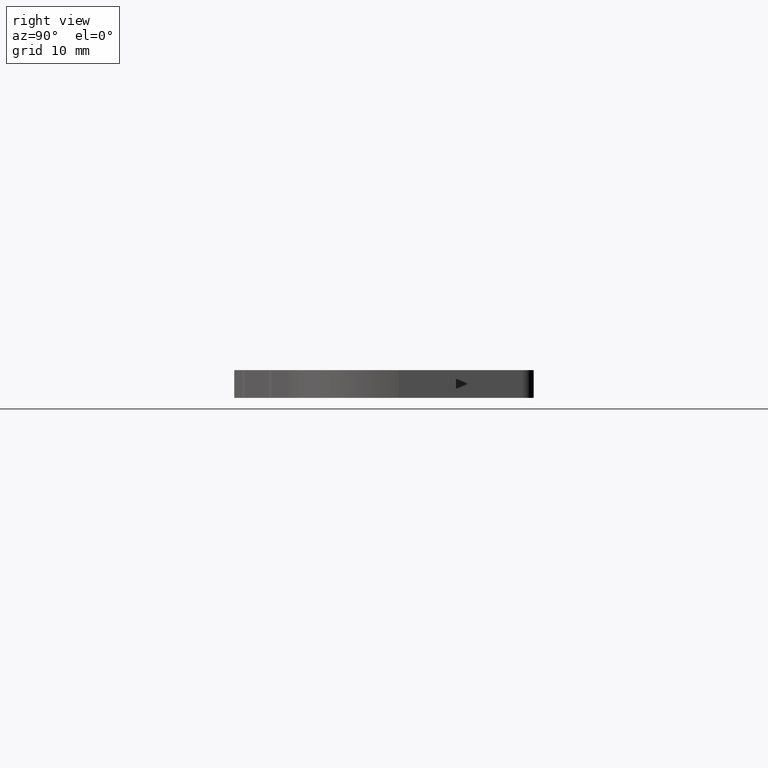
[diagram: clean part render]
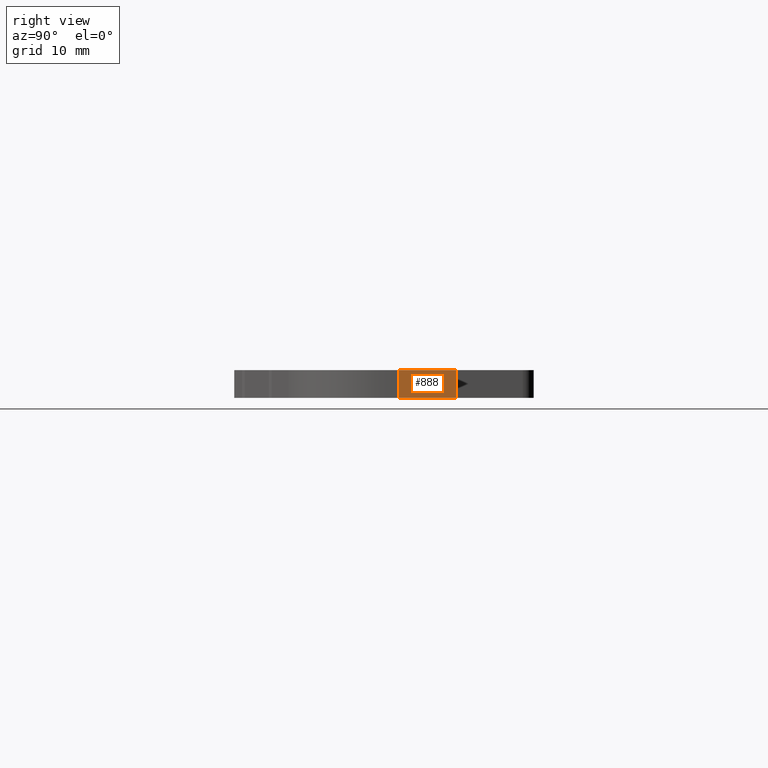
[diagram: same view with one face highlighted and labeled with its STEP entity id]
A machine part, right view. The second image highlights one B-rep face of the part: STEP entity #888.
In plain terms, the highlighted planar face has unit normal (1, 0, 0).
Its self-contained STEP definition (entity closure, byte-faithful):
#830=CARTESIAN_POINT('',(50.000017703124271,4.865224704818502,-2.500000000000000));
#831=VERTEX_POINT('',#830);
#839=CARTESIAN_POINT('',(50.000017703124271,4.865224704818502,0.0));
#840=VERTEX_POINT('',#839);
#841=CARTESIAN_POINT('',(50.000017703124271,4.865224704818502,-2.500000000000000));
#842=DIRECTION('',(0.0,0.0,1.0));
#843=VECTOR('',#842,2.500000000000000);
#844=LINE('',#841,#843);
#845=EDGE_CURVE('',#831,#840,#844,.T.);
#858=CARTESIAN_POINT('',(50.000017703124271,4.865224704818502,-2.500000000000000));
#859=DIRECTION('',(1.0,0.0,0.0));
#860=DIRECTION('',(0.0,1.0,0.0));
#861=AXIS2_PLACEMENT_3D('',#858,#859,#860);
#862=PLANE('',#861);
#863=CARTESIAN_POINT('',(50.000017703124271,9.999975307860666,-2.500000000000000));
#864=VERTEX_POINT('',#863);
#865=CARTESIAN_POINT('',(50.000017703124271,4.865224704818502,-2.500000000000000));
#866=DIRECTION('',(0.0,1.0,0.0));
#867=VECTOR('',#866,5.134750603042164);
#868=LINE('',#865,#867);
#869=EDGE_CURVE('',#831,#864,#868,.T.);
#870=ORIENTED_EDGE('',*,*,#869,.T.);
#871=CARTESIAN_POINT('',(50.000017703124271,9.999975307860666,0.0));
#872=VERTEX_POINT('',#871);
#873=CARTESIAN_POINT('',(50.000017703124271,9.999975307860666,-2.500000000000000));
#874=DIRECTION('',(0.0,0.0,1.0));
#875=VECTOR('',#874,2.500000000000000);
#876=LINE('',#873,#875);
#877=EDGE_CURVE('',#864,#872,#876,.T.);
#878=ORIENTED_EDGE('',*,*,#877,.T.);
#879=CARTESIAN_POINT('',(50.000017703124271,4.865224704818502,0.0));
#880=DIRECTION('',(0.0,1.0,0.0));
#881=VECTOR('',#880,5.134750603042164);
#882=LINE('',#879,#881);
#883=EDGE_CURVE('',#840,#872,#882,.T.);
#884=ORIENTED_EDGE('',*,*,#883,.F.);
#885=ORIENTED_EDGE('',*,*,#845,.F.);
#886=EDGE_LOOP('',(#870,#878,#884,#885));
#887=FACE_OUTER_BOUND('',#886,.T.);
#888=ADVANCED_FACE('',(#887),#862,.T.);